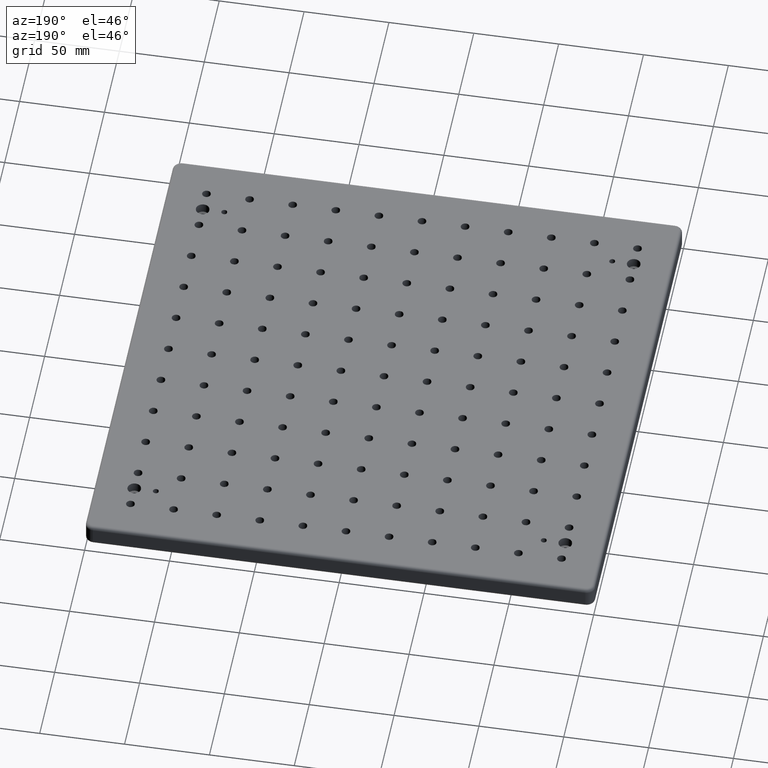
[diagram: clean part render]
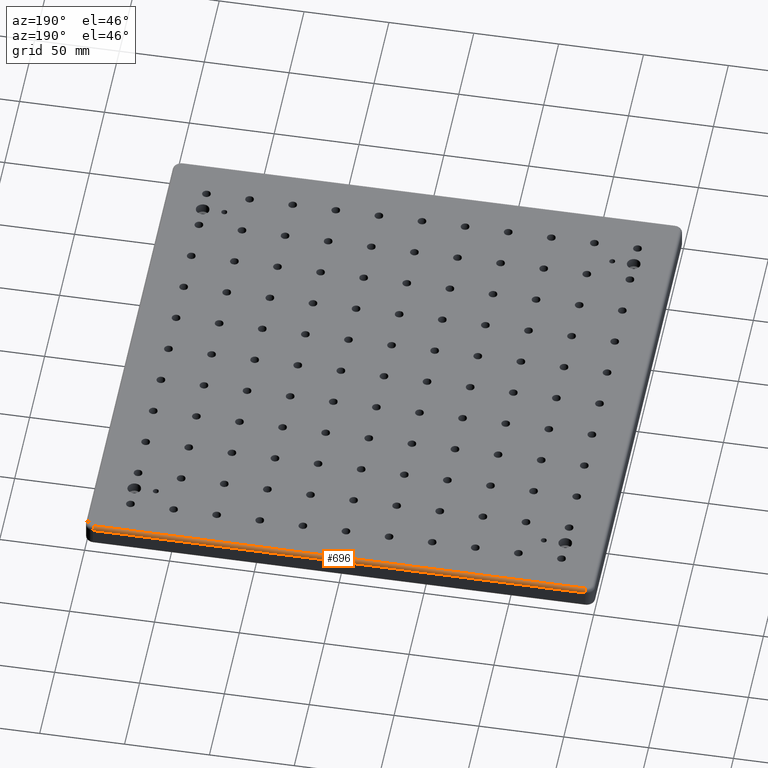
[diagram: same view with one face highlighted and labeled with its STEP entity id]
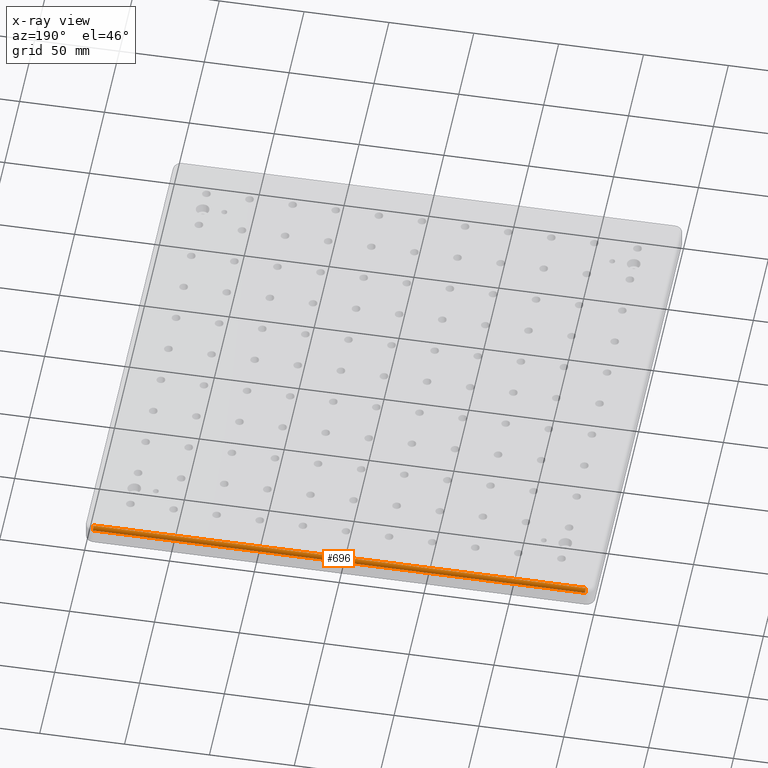
[diagram: x-ray of the same camera — body ghosted, the highlighted face saturated]
A machine part, auxiliary view. The second image highlights one B-rep face of the part: STEP entity #696.
The next image is the same camera in x-ray: the body ghosted, the highlighted face saturated — about 0% of this face is hidden behind the body in this view.
In plain terms, the highlighted cylindrical surface (edge-blend (fillet) strip) has radius 2 mm, axis along (1, -0, 0).
Its self-contained STEP definition (entity closure, byte-faithful):
#72 = LINE ( 'NONE', #3970, #8546 ) ;
#139 = CARTESIAN_POINT ( 'NONE',  ( 294.9999999999999400, 298.0000000000000000, 0.0000000000000000000 ) ) ;
#167 = CARTESIAN_POINT ( 'NONE',  ( 4.999999999999998200, 298.0000000000000000, -2.000000000000000000 ) ) ;
#206 = DIRECTION ( 'NONE',  ( 0.0000000000000000000, 0.0000000000000000000, -1.000000000000000000 ) ) ;
#427 = CARTESIAN_POINT ( 'NONE',  ( 294.9999999999999400, 300.0000000000000000, -2.000000000000000000 ) ) ;
#696 = ADVANCED_FACE ( 'NONE', ( #7476 ), #2216, .T. ) ;
#994 = DIRECTION ( 'NONE',  ( 1.000000000000000000, 0.0000000000000000000, 0.0000000000000000000 ) ) ;
#1602 = DIRECTION ( 'NONE',  ( 1.000000000000000000, -0.0000000000000000000, 0.0000000000000000000 ) ) ;
#2216 = CYLINDRICAL_SURFACE ( 'NONE', #2631, 2.000000000000000000 ) ;
#2577 = CARTESIAN_POINT ( 'NONE',  ( 4.999999999999998200, 300.0000000000000000, -2.000000000000000000 ) ) ;
#2605 = VERTEX_POINT ( 'NONE', #5309 ) ;
#2631 = AXIS2_PLACEMENT_3D ( 'NONE', #4316, #3633, #4357 ) ;
#2806 = CIRCLE ( 'NONE', #10180, 2.000000000000000000 ) ;
#3245 = EDGE_CURVE ( 'NONE', #4773, #2605, #2806, .T. ) ;
#3456 = CARTESIAN_POINT ( 'NONE',  ( 294.9999999999999400, 298.0000000000000000, -2.000000000000000000 ) ) ;
#3633 = DIRECTION ( 'NONE',  ( 1.000000000000000000, -0.0000000000000000000, 0.0000000000000000000 ) ) ;
#3711 = LINE ( 'NONE', #4123, #10122 ) ;
#3970 = CARTESIAN_POINT ( 'NONE',  ( 4.999999999999998200, 298.0000000000000000, 0.0000000000000000000 ) ) ;
#4123 = CARTESIAN_POINT ( 'NONE',  ( 294.9999999999999400, 300.0000000000000000, -2.000000000000000000 ) ) ;
#4316 = CARTESIAN_POINT ( 'NONE',  ( 0.0000000000000000000, 298.0000000000000000, -2.000000000000000000 ) ) ;
#4344 = VERTEX_POINT ( 'NONE', #139 ) ;
#4357 = DIRECTION ( 'NONE',  ( 0.0000000000000000000, 0.0000000000000000000, -1.000000000000000000 ) ) ;
#4552 = ORIENTED_EDGE ( 'NONE', *, *, #5508, .F. ) ;
#4773 = VERTEX_POINT ( 'NONE', #2577 ) ;
#5309 = CARTESIAN_POINT ( 'NONE',  ( 4.999999999999998200, 298.0000000000000000, 0.0000000000000000000 ) ) ;
#5508 = EDGE_CURVE ( 'NONE', #4773, #9128, #3711, .T. ) ;
#6040 = DIRECTION ( 'NONE',  ( 0.0000000000000000000, 0.0000000000000000000, -1.000000000000000000 ) ) ;
#6752 = CIRCLE ( 'NONE', #6819, 2.000000000000000000 ) ;
#6819 = AXIS2_PLACEMENT_3D ( 'NONE', #3456, #8440, #6040 ) ;
#7476 = FACE_OUTER_BOUND ( 'NONE', #10088, .T. ) ;
#7611 = ORIENTED_EDGE ( 'NONE', *, *, #3245, .T. ) ;
#8440 = DIRECTION ( 'NONE',  ( 1.000000000000000000, 0.0000000000000000000, 0.0000000000000000000 ) ) ;
#8546 = VECTOR ( 'NONE', #8971, 1000.000000000000000 ) ;
#8971 = DIRECTION ( 'NONE',  ( -1.000000000000000000, 0.0000000000000000000, 0.0000000000000000000 ) ) ;
#9128 = VERTEX_POINT ( 'NONE', #427 ) ;
#9331 = EDGE_CURVE ( 'NONE', #4344, #2605, #72, .T. ) ;
#9486 = EDGE_CURVE ( 'NONE', #9128, #4344, #6752, .T. ) ;
#9900 = ORIENTED_EDGE ( 'NONE', *, *, #9331, .F. ) ;
#10088 = EDGE_LOOP ( 'NONE', ( #7611, #9900, #10448, #4552 ) ) ;
#10122 = VECTOR ( 'NONE', #1602, 1000.000000000000000 ) ;
#10180 = AXIS2_PLACEMENT_3D ( 'NONE', #167, #994, #206 ) ;
#10448 = ORIENTED_EDGE ( 'NONE', *, *, #9486, .F. ) ;